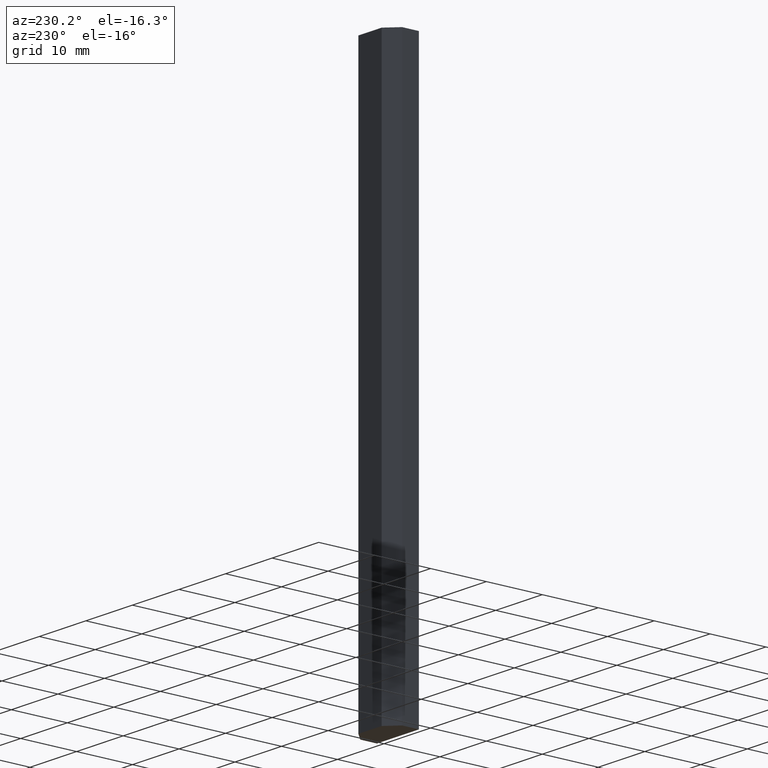
[diagram: clean part render]
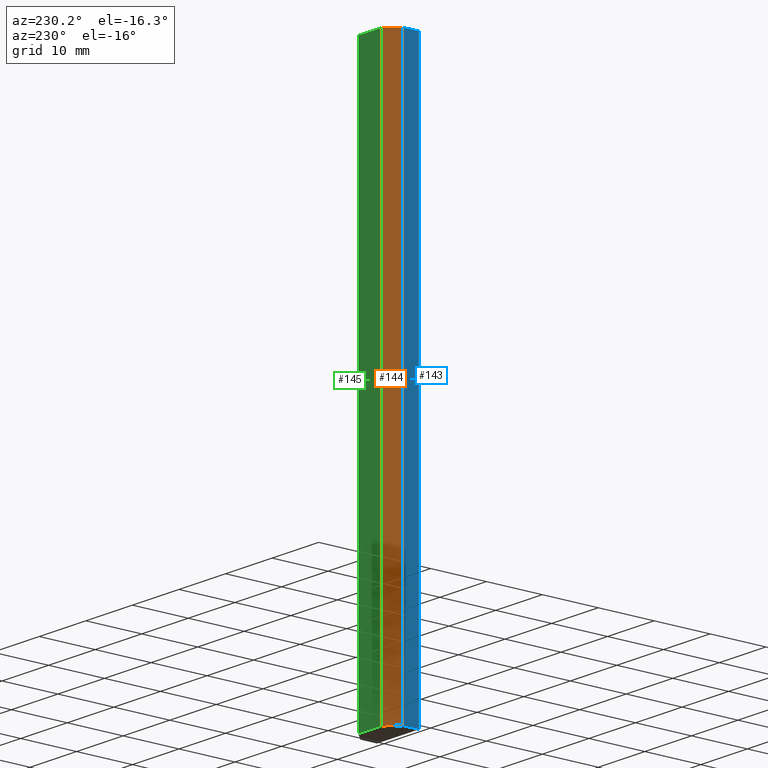
[diagram: same view with three faces highlighted in distinct colors, each labeled with its STEP entity id]
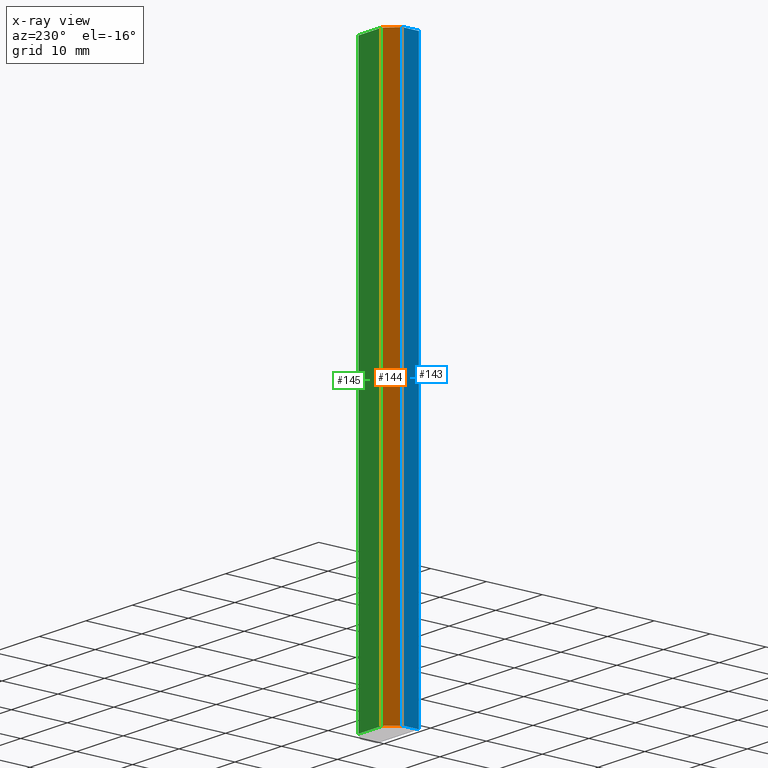
[diagram: x-ray of the same camera — body ghosted, the three highlighted faces saturated]
A machine part, auxiliary view with three faces highlighted in distinct colors.
The next image is the same camera in x-ray (body ghosted, the three faces saturated) — at least one of them is partly hidden behind the body in this view.
Their STEP definitions:

[orange] entity #144 — the highlighted planar face has unit normal (-0.7071, 0.7071, 0).
#18=FACE_OUTER_BOUND('',#26,.T.);
#26=EDGE_LOOP('',(#108,#109,#110,#111));
#35=LINE('',#227,#53);
#39=LINE('',#235,#57);
#41=LINE('',#239,#59);
#42=LINE('',#240,#60);
#53=VECTOR('',#188,10.);
#57=VECTOR('',#194,10.);
#59=VECTOR('',#198,10.);
#60=VECTOR('',#199,10.);
#71=VERTEX_POINT('',#224);
#72=VERTEX_POINT('',#226);
#75=VERTEX_POINT('',#233);
#76=VERTEX_POINT('',#238);
#83=EDGE_CURVE('',#72,#71,#35,.T.);
#87=EDGE_CURVE('',#75,#71,#39,.T.);
#89=EDGE_CURVE('',#75,#76,#41,.T.);
#90=EDGE_CURVE('',#76,#72,#42,.T.);
#108=ORIENTED_EDGE('',*,*,#89,.T.);
#109=ORIENTED_EDGE('',*,*,#90,.T.);
#110=ORIENTED_EDGE('',*,*,#83,.T.);
#111=ORIENTED_EDGE('',*,*,#87,.F.);
#136=PLANE('',#175);
#144=ADVANCED_FACE('',(#18),#136,.T.);
#175=AXIS2_PLACEMENT_3D('',#237,#196,#197);
#188=DIRECTION('',(-0.707106781186547,-0.707106781186548,0.));
#194=DIRECTION('',(0.,0.,-1.));
#196=DIRECTION('center_axis',(-0.707106781186548,0.707106781186547,0.));
#197=DIRECTION('ref_axis',(0.,0.,1.));
#198=DIRECTION('',(0.707106781186547,0.707106781186548,0.));
#199=DIRECTION('',(0.,0.,-1.));
#224=CARTESIAN_POINT('',(-4.5,0.499999999999999,-50.));
#226=CARTESIAN_POINT('',(-2.5,2.5,-50.));
#227=CARTESIAN_POINT('',(-4.5,0.499999999999999,-50.));
#233=CARTESIAN_POINT('',(-4.5,0.499999999999999,50.));
#235=CARTESIAN_POINT('',(-4.5,0.499999999999999,0.));
#237=CARTESIAN_POINT('Origin',(-4.5,0.499999999999999,0.));
#238=CARTESIAN_POINT('',(-2.5,2.5,50.));
#239=CARTESIAN_POINT('',(-4.5,0.499999999999999,50.));
#240=CARTESIAN_POINT('',(-2.5,2.5,0.));

[blue] entity #143 — the highlighted planar face has unit normal (-1, -0, 0).
#17=FACE_OUTER_BOUND('',#25,.T.);
#25=EDGE_LOOP('',(#104,#105,#106,#107));
#34=LINE('',#225,#52);
#38=LINE('',#234,#56);
#39=LINE('',#235,#57);
#40=LINE('',#236,#58);
#52=VECTOR('',#187,10.);
#56=VECTOR('',#193,10.);
#57=VECTOR('',#194,10.);
#58=VECTOR('',#195,10.);
#70=VERTEX_POINT('',#222);
#71=VERTEX_POINT('',#224);
#74=VERTEX_POINT('',#232);
#75=VERTEX_POINT('',#233);
#82=EDGE_CURVE('',#71,#70,#34,.T.);
#86=EDGE_CURVE('',#74,#75,#38,.T.);
#87=EDGE_CURVE('',#75,#71,#39,.T.);
#88=EDGE_CURVE('',#74,#70,#40,.T.);
#104=ORIENTED_EDGE('',*,*,#86,.T.);
#105=ORIENTED_EDGE('',*,*,#87,.T.);
#106=ORIENTED_EDGE('',*,*,#82,.T.);
#107=ORIENTED_EDGE('',*,*,#88,.F.);
#135=PLANE('',#174);
#143=ADVANCED_FACE('',(#17),#135,.T.);
#174=AXIS2_PLACEMENT_3D('',#231,#191,#192);
#187=DIRECTION('',(1.85037170770859E-16,-1.,0.));
#191=DIRECTION('center_axis',(-1.,-1.85037170770859E-16,0.));
#192=DIRECTION('ref_axis',(0.,0.,1.));
#193=DIRECTION('',(-1.85037170770859E-16,1.,0.));
#194=DIRECTION('',(0.,0.,-1.));
#195=DIRECTION('',(0.,0.,-1.));
#222=CARTESIAN_POINT('',(-4.5,-2.5,-50.));
#224=CARTESIAN_POINT('',(-4.5,0.499999999999999,-50.));
#225=CARTESIAN_POINT('',(-4.5,-2.5,-50.));
#231=CARTESIAN_POINT('Origin',(-4.5,-2.5,0.));
#232=CARTESIAN_POINT('',(-4.5,-2.5,50.));
#233=CARTESIAN_POINT('',(-4.5,0.499999999999999,50.));
#234=CARTESIAN_POINT('',(-4.5,-2.5,50.));
#235=CARTESIAN_POINT('',(-4.5,0.499999999999999,0.));
#236=CARTESIAN_POINT('',(-4.5,-2.5,0.));

[green] entity #145 — the highlighted planar face has unit normal (0, 1, 0).
#19=FACE_OUTER_BOUND('',#27,.T.);
#27=EDGE_LOOP('',(#112,#113,#114,#115));
#36=LINE('',#229,#54);
#42=LINE('',#240,#60);
#43=LINE('',#243,#61);
#44=LINE('',#244,#62);
#54=VECTOR('',#189,10.);
#60=VECTOR('',#199,10.);
#61=VECTOR('',#202,10.);
#62=VECTOR('',#203,10.);
#72=VERTEX_POINT('',#226);
#73=VERTEX_POINT('',#228);
#76=VERTEX_POINT('',#238);
#77=VERTEX_POINT('',#242);
#84=EDGE_CURVE('',#73,#72,#36,.T.);
#90=EDGE_CURVE('',#76,#72,#42,.T.);
#91=EDGE_CURVE('',#76,#77,#43,.T.);
#92=EDGE_CURVE('',#77,#73,#44,.T.);
#112=ORIENTED_EDGE('',*,*,#91,.T.);
#113=ORIENTED_EDGE('',*,*,#92,.T.);
#114=ORIENTED_EDGE('',*,*,#84,.T.);
#115=ORIENTED_EDGE('',*,*,#90,.F.);
#137=PLANE('',#176);
#145=ADVANCED_FACE('',(#19),#137,.T.);
#176=AXIS2_PLACEMENT_3D('',#241,#200,#201);
#189=DIRECTION('',(-1.,0.,0.));
#199=DIRECTION('',(0.,0.,-1.));
#200=DIRECTION('center_axis',(0.,1.,0.));
#201=DIRECTION('ref_axis',(0.,0.,1.));
#202=DIRECTION('',(1.,0.,0.));
#203=DIRECTION('',(0.,0.,-1.));
#226=CARTESIAN_POINT('',(-2.5,2.5,-50.));
#228=CARTESIAN_POINT('',(2.5,2.5,-50.));
#229=CARTESIAN_POINT('',(-2.5,2.5,-50.));
#238=CARTESIAN_POINT('',(-2.5,2.5,50.));
#240=CARTESIAN_POINT('',(-2.5,2.5,0.));
#241=CARTESIAN_POINT('Origin',(-2.5,2.5,0.));
#242=CARTESIAN_POINT('',(2.5,2.5,50.));
#243=CARTESIAN_POINT('',(-2.5,2.5,50.));
#244=CARTESIAN_POINT('',(2.5,2.5,0.));